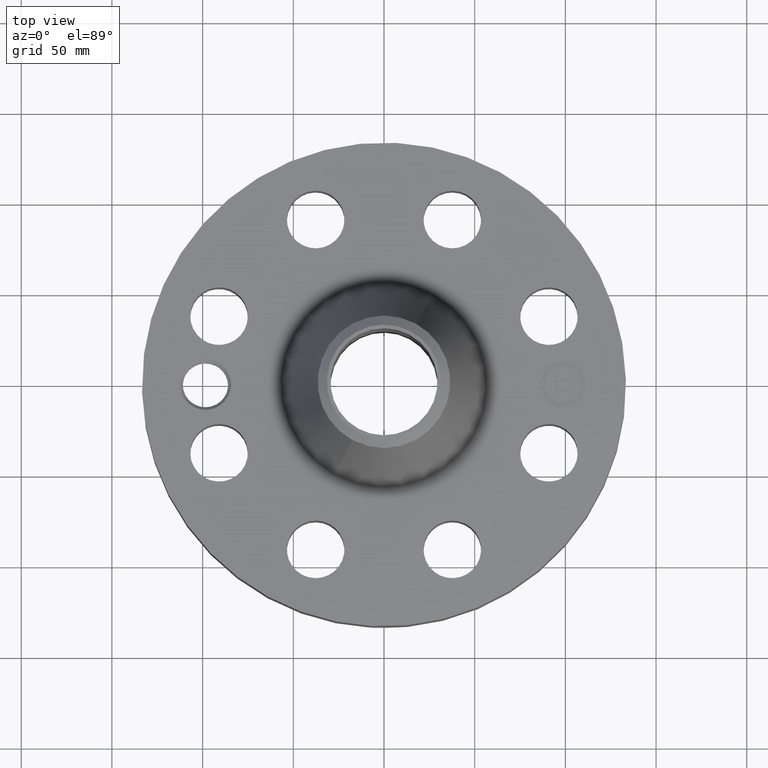
[diagram: clean part render]
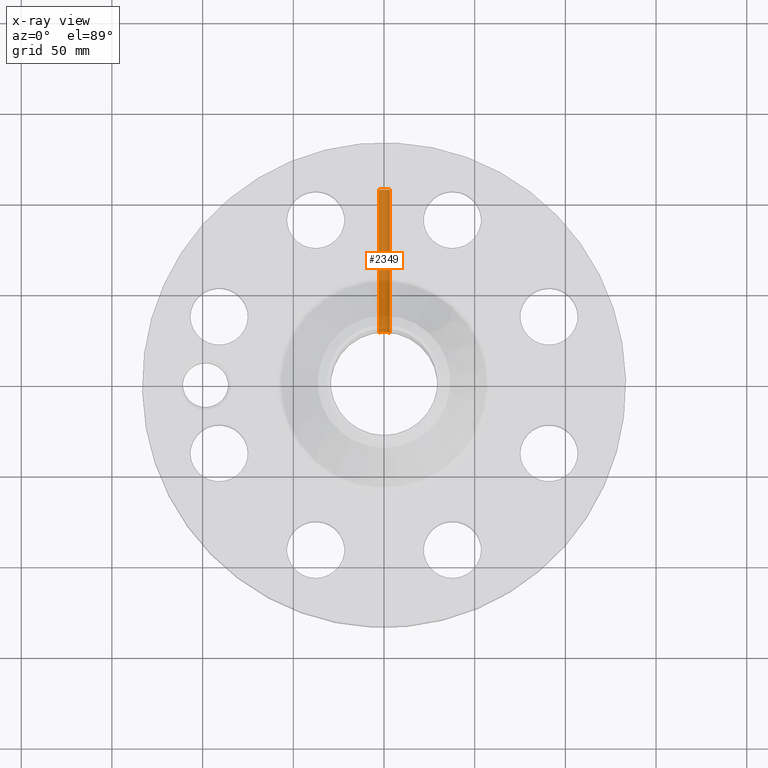
[diagram: x-ray — body ghosted, one internal face saturated and labeled with its STEP entity id]
A machine part, top view, then the same camera in x-ray: the body is ghosted and one INTERNAL B-rep face — a face not visible from any outside direction — is saturated and labeled: STEP entity #2349.
In plain terms, the highlighted cylindrical surface (edge-blend (fillet) strip) has radius 3.175 mm, axis along (-0, -1, 0).
Its self-contained STEP definition (entity closure, byte-faithful):
#2322=AXIS2_PLACEMENT_3D('Cylinder Axis2P3D',#2319,#2320,#2321) ;
#2333=AXIS2_PLACEMENT_3D('Circle Axis2P3D',#2331,#2332,$) ;
#1255=CARTESIAN_POINT('Vertex',(0.109697820237,1.15630819345,0.99992819233)) ;
#1257=CARTESIAN_POINT('Vertex',(-0.109697820237,1.15630819345,0.880071807678)) ;
#1261=CARTESIAN_POINT('Control Point',(-0.109697820237,1.15630819345,0.880071807678)) ;
#1262=CARTESIAN_POINT('Control Point',(-0.103060989338,1.15693782307,0.867923170206)) ;
#1263=CARTESIAN_POINT('Control Point',(-0.0947448230823,1.15767872447,0.856697749081)) ;
#1264=CARTESIAN_POINT('Control Point',(-0.0849182887627,1.15846635587,0.846700913938)) ;
#1265=CARTESIAN_POINT('Control Point',(-0.0516886767891,1.16070631197,0.821187222261)) ;
#1266=CARTESIAN_POINT('Control Point',(-0.00989996084354,1.1619951466,0.810631339404)) ;
#1267=CARTESIAN_POINT('Control Point',(0.0193347640207,1.16185763576,0.811705073156)) ;
#1268=CARTESIAN_POINT('Control Point',(0.0602547442457,1.16026013349,0.825289990181)) ;
#1269=CARTESIAN_POINT('Control Point',(0.0915436738407,1.15795237813,0.853185905709)) ;
#1270=CARTESIAN_POINT('Control Point',(0.100627251511,1.15717313002,0.863899764543)) ;
#1271=CARTESIAN_POINT('Control Point',(0.1205828055,1.15530347133,0.895468571016)) ;
#1272=CARTESIAN_POINT('Control Point',(0.1280820594,1.15440542413,0.932730195251)) ;
#1273=CARTESIAN_POINT('Control Point',(0.127187508325,1.15451484049,0.956754830226)) ;
#1274=CARTESIAN_POINT('Control Point',(0.120786722979,1.15525620016,0.979630092013)) ;
#1275=CARTESIAN_POINT('Control Point',(0.109697820237,1.15630819345,0.99992819233)) ;
#2319=CARTESIAN_POINT('Axis2P3D Location',(-2.80464451165E-016,5.24606299215,0.940000000004)) ;
#2324=CARTESIAN_POINT('Line Origine',(0.109697820237,2.70379218124,0.99992819233)) ;
#2328=CARTESIAN_POINT('Vertex',(0.109697820237,4.25321662099,0.99992819233)) ;
#2331=CARTESIAN_POINT('Axis2P3D Location',(-4.62847370738E-016,4.25321662099,0.940000000004)) ;
#2335=CARTESIAN_POINT('Vertex',(-0.109697820237,4.25321662099,0.880071807678)) ;
#2338=CARTESIAN_POINT('Line Origine',(-0.109697820237,2.70379218124,0.880071807678)) ;
#2320=DIRECTION('Axis2P3D Direction',(-7.2321661367E-018,-0.0393700787402,0.)) ;
#2321=DIRECTION('Axis2P3D XDirection',(0.0345504945626,-6.34682288626E-018,0.0188750212049)) ;
#2325=DIRECTION('Vector Direction',(-7.33020853796E-018,-0.0393700787402,0.)) ;
#2332=DIRECTION('Axis2P3D Direction',(-7.2321661367E-018,-0.0393700787402,0.)) ;
#2339=DIRECTION('Vector Direction',(-7.33020853796E-018,-0.0393700787402,0.)) ;
#2326=VECTOR('Line Direction',#2325,0.0393700787402) ;
#2340=VECTOR('Line Direction',#2339,0.0393700787402) ;
#2344=ORIENTED_EDGE('',*,*,#1276,.T.) ;
#2345=ORIENTED_EDGE('',*,*,#2330,.T.) ;
#2346=ORIENTED_EDGE('',*,*,#2337,.F.) ;
#2347=ORIENTED_EDGE('',*,*,#2342,.F.) ;
#2349=ADVANCED_FACE('PartBody',(#2348),#2323,.F.) ;
#1260=B_SPLINE_CURVE_WITH_KNOTS('',5,(#1261,#1262,#1263,#1264,#1265,#1266,#1267,#1268,#1269,#1270,#1271,#1272,#1273,#1274,#1275),.UNSPECIFIED.,.F.,.U.,(6,3,3,3,6),(0.,2.48889771041,7.46397860236,9.95771115008,14.1161935741),.UNSPECIFIED.) ;
#2334=CIRCLE('generated circle',#2333,0.125000000001) ;
#2323=CYLINDRICAL_SURFACE('generated cylinder',#2322,0.125000000001) ;
#1276=EDGE_CURVE('',#1258,#1256,#1260,.T.) ;
#2330=EDGE_CURVE('',#1256,#2329,#2327,.F.) ;
#2337=EDGE_CURVE('',#2336,#2329,#2334,.T.) ;
#2342=EDGE_CURVE('',#1258,#2336,#2341,.F.) ;
#2343=EDGE_LOOP('',(#2344,#2345,#2346,#2347)) ;
#2348=FACE_OUTER_BOUND('',#2343,.T.) ;
#2327=LINE('Line',#2324,#2326) ;
#2341=LINE('Line',#2338,#2340) ;
#1256=VERTEX_POINT('',#1255) ;
#1258=VERTEX_POINT('',#1257) ;
#2329=VERTEX_POINT('',#2328) ;
#2336=VERTEX_POINT('',#2335) ;